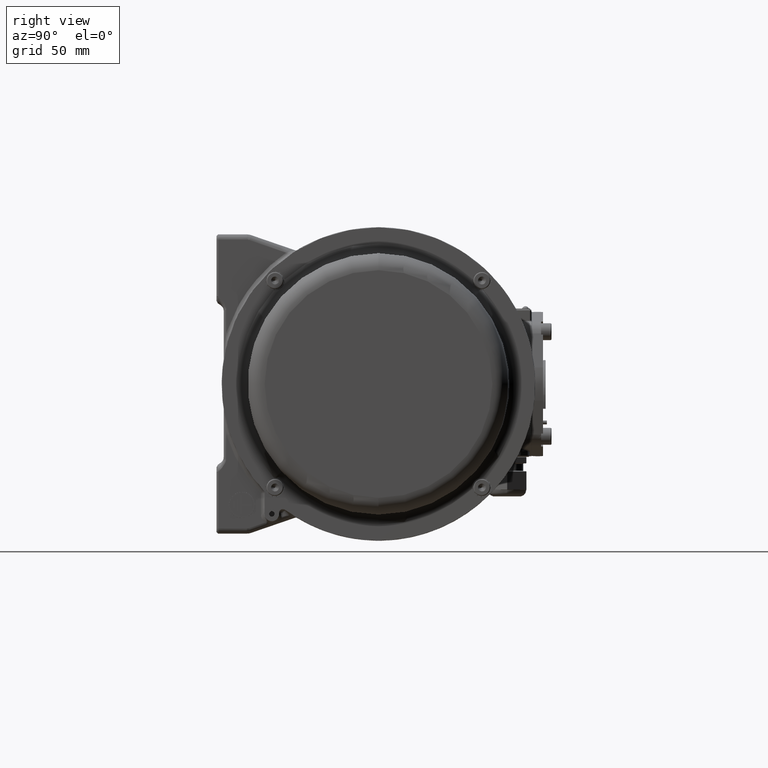
[diagram: clean part render]
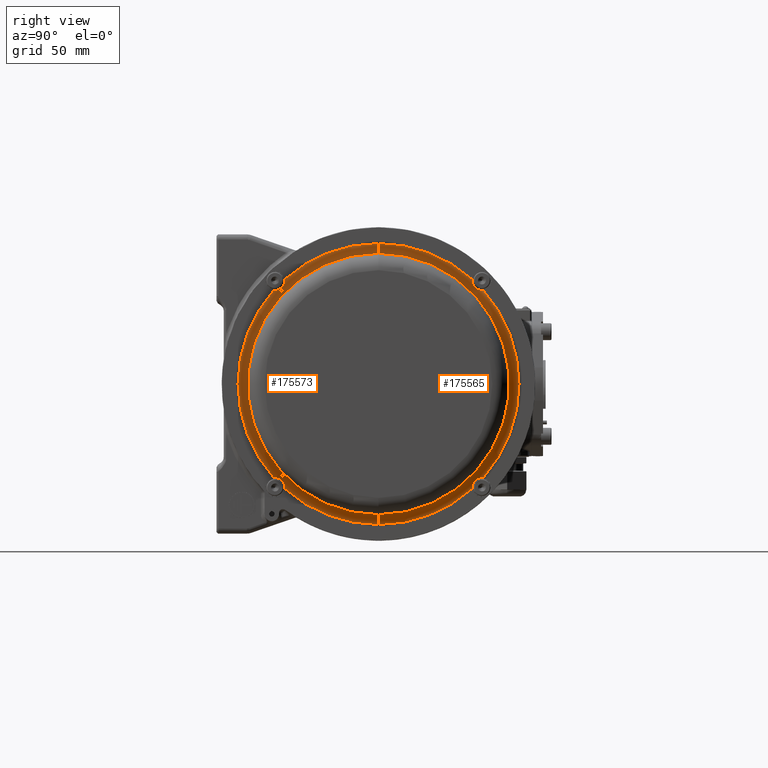
[diagram: same view with one multi-face feature highlighted, each face labeled with its STEP entity id]
A machine part, right view. The highlighted faces form ONE feature: a constant-radius fillet chain: 2 tangent blend faces with common blend radius 7.5 mm. The faces share edges in the B-rep.
Their STEP definitions:
[1] entity #175573 (Torus):
#955 = CARTESIAN_POINT ( 'NONE',  ( 112.4628584247216000, -38.43843088869650200, -73.96171010513388900 ) ) ;
#986 = CARTESIAN_POINT ( 'NONE',  ( 112.4491514678205100, -38.83626597230353600, -73.60553650799678800 ) ) ;
#987 = CARTESIAN_POINT ( 'NONE',  ( 112.4089454792793500, -39.26487234211767000, -73.29743206746221100 ) ) ;
#989 = CARTESIAN_POINT ( 'NONE',  ( 112.3221898346620800, -39.95325216921637000, -72.90459890144843800 ) ) ;
#991 = CARTESIAN_POINT ( 'NONE',  ( 112.2887405209811400, -40.19178677098316400, -72.78474167743374300 ) ) ;
#992 = CARTESIAN_POINT ( 'NONE',  ( 112.2177464829112800, -40.67658757919637900, -72.57257846146703200 ) ) ;
#994 = CARTESIAN_POINT ( 'NONE',  ( 112.1802627548801800, -40.92276230554751500, -72.48007544116976000 ) ) ;
#996 = CARTESIAN_POINT ( 'NONE',  ( 112.1053404424513600, -41.42297575557753200, -72.32136504202705400 ) ) ;
#998 = CARTESIAN_POINT ( 'NONE',  ( 112.0678934336390100, -41.67701349150497900, -72.25515837612167000 ) ) ;
#999 = CARTESIAN_POINT ( 'NONE',  ( 111.9972690195174600, -42.19362761780572400, -72.14928336317109400 ) ) ;
#1001 = CARTESIAN_POINT ( 'NONE',  ( 111.9639170423544400, -42.45790447266436000, -72.10951102074817200 ) ) ;
#1003 = CARTESIAN_POINT ( 'NONE',  ( 111.8789884087745600, -43.24940481655401200, -72.03324522377703000 ) ) ;
#1004 = CARTESIAN_POINT ( 'NONE',  ( 111.8420498956300500, -43.77570803628632500, -72.03832158942505300 ) ) ;
#1006 = CARTESIAN_POINT ( 'NONE',  ( 111.8420498956300000, -44.30134065185225700, -72.09901323092800900 ) ) ;
#2133 = CARTESIAN_POINT ( 'NONE',  ( 112.4628584247216000, -37.85327342159904900, 74.54686757223119300 ) ) ;
#2149 = CARTESIAN_POINT ( 'NONE',  ( 112.4491514678204900, -37.49709982446193400, 74.94470265583824200 ) ) ;
#2150 = CARTESIAN_POINT ( 'NONE',  ( 112.4089454792793700, -37.18899538392737700, 75.37330902565238900 ) ) ;
#2151 = CARTESIAN_POINT ( 'NONE',  ( 112.3221898346621100, -36.79616221791361100, 76.06168885275106100 ) ) ;
#2152 = CARTESIAN_POINT ( 'NONE',  ( 112.2887405209811900, -36.67630499389891700, 76.30022345451786200 ) ) ;
#2153 = CARTESIAN_POINT ( 'NONE',  ( 112.2177464829112900, -36.46414177793214900, 76.78502426273108500 ) ) ;
#2154 = CARTESIAN_POINT ( 'NONE',  ( 112.1802627548801600, -36.37163875763491900, 77.03119898908222800 ) ) ;
#2155 = CARTESIAN_POINT ( 'NONE',  ( 112.1053404424513600, -36.21292835849216400, 77.53141243911224500 ) ) ;
#2156 = CARTESIAN_POINT ( 'NONE',  ( 112.0678934336390300, -36.14672169258677300, 77.78545017503967100 ) ) ;
#2157 = CARTESIAN_POINT ( 'NONE',  ( 111.9972690195174300, -36.04084667963620300, 78.30206430134042300 ) ) ;
#2158 = CARTESIAN_POINT ( 'NONE',  ( 111.9639170423544000, -36.00107433721328900, 78.56634115619904400 ) ) ;
#2159 = CARTESIAN_POINT ( 'NONE',  ( 111.8789884087746000, -35.92480854024214700, 79.35784150008875300 ) ) ;
#2160 = CARTESIAN_POINT ( 'NONE',  ( 111.8420498956300400, -35.92988490589013400, 79.88414471982106600 ) ) ;
#2161 = CARTESIAN_POINT ( 'NONE',  ( 111.8420498956300000, -35.99057654739305400, 80.40977733538699100 ) ) ;
#6104 = AXIS2_PLACEMENT_3D ( 'NONE', #28693, #28677, #28717 ) ;
#7214 = CARTESIAN_POINT ( 'NONE',  ( 119.3420498956300100, 36.10843668353452800, 100.4999999999999600 ) ) ;
#7215 = CARTESIAN_POINT ( 'NONE',  ( 119.3420498956300100, 36.10843668353455600, -100.5000000000000600 ) ) ;
#7222 = CARTESIAN_POINT ( 'NONE',  ( 111.8420498956300100, 36.10843668353452800, 107.9999999999999400 ) ) ;
#7224 = CARTESIAN_POINT ( 'NONE',  ( 111.8420498956300100, 36.10843668353455600, -108.0000000000000600 ) ) ;
#7238 = CARTESIAN_POINT ( 'NONE',  ( 111.8420498956300000, -44.30134065185379900, 72.09901323092610400 ) ) ;
#7281 = CARTESIAN_POINT ( 'NONE',  ( 111.8420498956300000, -35.99057654739134900, -80.40977733538871100 ) ) ;
#7296 = CARTESIAN_POINT ( 'NONE',  ( 111.8420498956300000, -36.30596857921334900, -80.12586293103198900 ) ) ;
#7298 = CARTESIAN_POINT ( 'NONE',  ( 111.8420498956300000, -36.50525953633069800, -79.94530080804709400 ) ) ;
#7299 = CARTESIAN_POINT ( 'NONE',  ( 112.4470371296541900, -37.88066058532840000, 74.57138673864670900 ) ) ;
#7300 = CARTESIAN_POINT ( 'NONE',  ( 112.4634012082901900, -37.86753094403345400, 74.53097832727060300 ) ) ;
#7301 = CARTESIAN_POINT ( 'NONE',  ( 111.8500797414886000, -43.86836375281140500, 72.06169441966270000 ) ) ;
#7302 = CARTESIAN_POINT ( 'NONE',  ( 111.8420498956300000, -43.83686412451225300, 72.61369621986548900 ) ) ;
#7303 = CARTESIAN_POINT ( 'NONE',  ( 111.8420498956300000, -44.01742624750345100, 72.41440526274111300 ) ) ;
#7304 = CARTESIAN_POINT ( 'NONE',  ( 111.8444922958692000, -44.06521667750215000, 72.07552809193920500 ) ) ;
#7305 = CARTESIAN_POINT ( 'NONE',  ( 112.4470371296541900, -38.46295005511190400, -73.98909726886321900 ) ) ;
#7306 = CARTESIAN_POINT ( 'NONE',  ( 112.4634012082901900, -38.42254164373589700, -73.97596762756829500 ) ) ;
#7307 = CARTESIAN_POINT ( 'NONE',  ( 111.8500797414886000, -35.95325773612794500, -79.97680043634630900 ) ) ;
#7308 = CARTESIAN_POINT ( 'NONE',  ( 111.8444922958690000, -35.96709140840440000, -80.17365336103698300 ) ) ;
#21662 = CIRCLE ( 'NONE', #141777, 100.5000000000000000 ) ;
#21676 = CIRCLE ( 'NONE', #141788, 7.499999999999992900 ) ;
#21679 = CIRCLE ( 'NONE', #141791, 7.499999999999992900 ) ;
#21688 = CIRCLE ( 'NONE', #141793, 108.0000000000000000 ) ;
#21729 = CIRCLE ( 'NONE', #141799, 108.0000000000000000 ) ;
#21817 = CIRCLE ( 'NONE', #141808, 108.0000000000000000 ) ;
#21872 = CIRCLE ( 'NONE', #141812, 108.0000000000000000 ) ;
#21879 = CIRCLE ( 'NONE', #141806, 108.0000000000000000 ) ;
#28677 = DIRECTION ( 'NONE',  ( -1.000000000000000000, -2.944983097282874300E-031, 2.832402298722365000E-018 ) ) ;
#28693 = CARTESIAN_POINT ( 'NONE',  ( 119.3420498956300100, 36.10843668353454900, -5.553579313125669400E-014 ) ) ;
#28717 = DIRECTION ( 'NONE',  ( -2.832402298722365000E-018, 6.007700349703228000E-017, -1.000000000000000000 ) ) ;
#33674 = TOROIDAL_SURFACE ( 'NONE', #6104, 108.0000000000000000, 7.500000000000000000 ) ;
#33717 = FACE_OUTER_BOUND ( 'NONE', #187982, .T. ) ;
#38138 = B_SPLINE_CURVE_WITH_KNOTS ( 'NONE', 3,
 ( #66137, #66160, #66164, #66169 ),
 .UNSPECIFIED., .F., .F.,
 ( 4, 4 ),
 ( 0.001659768842651461700, 0.002212183640125269600 ),
 .UNSPECIFIED. ) ;
#38141 = B_SPLINE_CURVE_WITH_KNOTS ( 'NONE', 3,
 ( #66179, #66198, #66203, #66208 ),
 .UNSPECIFIED., .F., .F.,
 ( 4, 4 ),
 ( 0.0000000000000000000, 4.555497409221379600E-005 ),
 .UNSPECIFIED. ) ;
#38144 = B_SPLINE_CURVE_WITH_KNOTS ( 'NONE', 3,
 ( #66234, #66251, #66256, #66261, #66266, #66271, #66275, #66280, #66285, #66289, #66294, #66299, #66303, #66308 ),
 .UNSPECIFIED., .F., .F.,
 ( 4, 2, 2, 2, 2, 2, 4 ),
 ( 0.004178937486488309500, 0.005857649368804048400, 0.007536361251119787400, 0.008375717192277665500, 0.009215073133435544600, 0.01005442907459342200, 0.01089378501575130100 ),
 .UNSPECIFIED. ) ;
#38147 = B_SPLINE_CURVE_WITH_KNOTS ( 'NONE', 3,
 ( #66243, #66322, #66327, #66331 ),
 .UNSPECIFIED., .F., .F.,
 ( 4, 4 ),
 ( 1.322980634718201300E-005, 5.324928225159235600E-005 ),
 .UNSPECIFIED. ) ;
#38150 = B_SPLINE_CURVE_WITH_KNOTS ( 'NONE', 3,
 ( #66336, #66363, #66368, #66373 ),
 .UNSPECIFIED., .F., .F.,
 ( 4, 4 ),
 ( 2.603898261815824100E-006, 0.0003448430350513081600 ),
 .UNSPECIFIED. ) ;
#38153 = B_SPLINE_CURVE_WITH_KNOTS ( 'NONE', 3,
 ( #66355, #66386, #66391, #66396 ),
 .UNSPECIFIED., .F., .F.,
 ( 4, 4 ),
 ( 0.003749134168801736800, 0.003983416587482637200 ),
 .UNSPECIFIED. ) ;
#38156 = B_SPLINE_CURVE_WITH_KNOTS ( 'NONE', 3,
 ( #66377, #66410, #66414, #66419, #66423, #66428, #66433, #66438, #66442, #66447, #66452, #66457, #66462, #66467 ),
 .UNSPECIFIED., .F., .F.,
 ( 4, 2, 2, 2, 2, 2, 4 ),
 ( 0.004178937486488529800, 0.005857649368804297400, 0.007536361251120065800, 0.008375717192277948300, 0.009215073133435832500, 0.01005442907459371700, 0.01089378501575160100 ),
 .UNSPECIFIED. ) ;
#38159 = B_SPLINE_CURVE_WITH_KNOTS ( 'NONE', 3,
 ( #66401, #66479, #66484, #66489 ),
 .UNSPECIFIED., .F., .F.,
 ( 4, 4 ),
 ( 1.322980634723824900E-005, 5.324928225156811000E-005 ),
 .UNSPECIFIED. ) ;
#38162 = B_SPLINE_CURVE_WITH_KNOTS ( 'NONE', 3,
 ( #66382, #66502, #66507, #66512 ),
 .UNSPECIFIED., .F., .F.,
 ( 4, 4 ),
 ( 0.001659768842651452800, 0.002212183640125226200 ),
 .UNSPECIFIED. ) ;
#38165 = B_SPLINE_CURVE_WITH_KNOTS ( 'NONE', 3,
 ( #66494, #66525, #66530, #66535 ),
 .UNSPECIFIED., .F., .F.,
 ( 4, 4 ),
 ( 0.0000000000000000000, 4.555497409218559300E-005 ),
 .UNSPECIFIED. ) ;
#38168 = B_SPLINE_CURVE_WITH_KNOTS ( 'NONE', 3,
 ( #66517, #66562, #66567, #66572 ),
 .UNSPECIFIED., .F., .F.,
 ( 4, 4 ),
 ( 2.603898261772662300E-006, 0.0003448430350591188600 ),
 .UNSPECIFIED. ) ;
#38171 = B_SPLINE_CURVE_WITH_KNOTS ( 'NONE', 3,
 ( #66553, #66604, #66607, #66612 ),
 .UNSPECIFIED., .F., .F.,
 ( 4, 4 ),
 ( 0.003749134168802016100, 0.003983416587482985000 ),
 .UNSPECIFIED. ) ;
#64350 = CARTESIAN_POINT ( 'NONE',  ( 119.3420498956300100, 36.10843668353454900, -5.553579313125669400E-014 ) ) ;
#64357 = DIRECTION ( 'NONE',  ( -1.000000000000000000, -2.944983097282874300E-031, 2.832402298722365000E-018 ) ) ;
#64361 = DIRECTION ( 'NONE',  ( 0.0000000000000000000, 6.904372043688783800E-017, -1.000000000000000000 ) ) ;
#64525 = CARTESIAN_POINT ( 'NONE',  ( 119.3420498956300100, 36.10843668353452800, 107.9999999999999400 ) ) ;
#64584 = CARTESIAN_POINT ( 'NONE',  ( 119.3420498956300100, 36.10843668353455600, -108.0000000000000600 ) ) ;
#64588 = DIRECTION ( 'NONE',  ( 2.939306852595354700E-031, -1.000000000000000000, -2.004039006069234000E-016 ) ) ;
#64592 = DIRECTION ( 'NONE',  ( 0.0000000000000000000, 0.0000000000000000000, -1.000000000000000000 ) ) ;
#64617 = DIRECTION ( 'NONE',  ( -2.942775545004382700E-031, 1.000000000000000000, 7.793922069218809200E-017 ) ) ;
#64621 = DIRECTION ( 'NONE',  ( 0.0000000000000000000, 0.0000000000000000000, 1.000000000000000000 ) ) ;
#64939 = CARTESIAN_POINT ( 'NONE',  ( 111.8420498956300000, 36.10843668353454900, -5.551455011401629100E-014 ) ) ;
#64947 = DIRECTION ( 'NONE',  ( -1.000000000000000000, -2.944983097282874300E-031, 2.832402298722365000E-018 ) ) ;
#64949 = DIRECTION ( 'NONE',  ( 0.0000000000000000000, 6.424901762877063500E-017, -1.000000000000000000 ) ) ;
#65186 = CARTESIAN_POINT ( 'NONE',  ( 111.8420498956300000, 36.10843668353454900, -5.551455011401629100E-014 ) ) ;
#65193 = DIRECTION ( 'NONE',  ( -1.000000000000000000, -2.944983097282874300E-031, 2.832402298722365000E-018 ) ) ;
#65197 = DIRECTION ( 'NONE',  ( 0.0000000000000000000, 6.424901762877063500E-017, -1.000000000000000000 ) ) ;
#65814 = CARTESIAN_POINT ( 'NONE',  ( 111.8420498956300000, 36.10843668353454900, -5.551455011401629100E-014 ) ) ;
#65822 = DIRECTION ( 'NONE',  ( -1.000000000000000000, -2.944983097282874300E-031, 2.832402298722365000E-018 ) ) ;
#65827 = DIRECTION ( 'NONE',  ( 0.0000000000000000000, 6.424901762877063500E-017, -1.000000000000000000 ) ) ;
#66137 = CARTESIAN_POINT ( 'NONE',  ( 111.8420498956300000, -43.83686412451225300, 72.61369621986548900 ) ) ;
#66160 = CARTESIAN_POINT ( 'NONE',  ( 111.8420498956300000, -43.84735945321514100, 72.42977530871372900 ) ) ;
#66164 = CARTESIAN_POINT ( 'NONE',  ( 111.8447346220143600, -43.85785934309510000, 72.24577446716030200 ) ) ;
#66169 = CARTESIAN_POINT ( 'NONE',  ( 111.8500797414886000, -43.86836375281140500, 72.06169441966270000 ) ) ;
#66179 = CARTESIAN_POINT ( 'NONE',  ( 112.4634012082901900, -37.86753094403345400, 74.53097832727060300 ) ) ;
#66193 = CARTESIAN_POINT ( 'NONE',  ( 111.8420498956300000, 36.10843668353454900, -5.551455011401629100E-014 ) ) ;
#66198 = CARTESIAN_POINT ( 'NONE',  ( 112.4579111137152800, -37.87190950028098500, 74.54441422129883700 ) ) ;
#66203 = CARTESIAN_POINT ( 'NONE',  ( 112.4524547227967900, -37.87629123342380000, 74.55789072400520500 ) ) ;
#66208 = CARTESIAN_POINT ( 'NONE',  ( 112.4470371296541900, -37.88066058532840000, 74.57138673864670900 ) ) ;
#66220 = DIRECTION ( 'NONE',  ( -1.000000000000000000, -2.944983097282874300E-031, 2.832402298722365000E-018 ) ) ;
#66225 = DIRECTION ( 'NONE',  ( 0.0000000000000000000, 6.424901762877063500E-017, -1.000000000000000000 ) ) ;
#66234 = CARTESIAN_POINT ( 'NONE',  ( 111.8500797414886000, -43.86836375281140500, 72.06169441966270000 ) ) ;
#66243 = CARTESIAN_POINT ( 'NONE',  ( 112.4470371296541900, -37.88066058532840000, 74.57138673864670900 ) ) ;
#66251 = CARTESIAN_POINT ( 'NONE',  ( 111.8704394949483900, -43.30553933952730700, 72.02957720589648700 ) ) ;
#66256 = CARTESIAN_POINT ( 'NONE',  ( 111.9270577386376700, -42.74629233661710300, 72.06065757798431500 ) ) ;
#66261 = CARTESIAN_POINT ( 'NONE',  ( 112.0698000235059600, -41.63827341863530100, 72.24776100224777100 ) ) ;
#66266 = CARTESIAN_POINT ( 'NONE',  ( 112.1536881547375800, -41.10533456140023400, 72.40078293302941900 ) ) ;
#66271 = CARTESIAN_POINT ( 'NONE',  ( 112.2684596733286600, -40.33281699562605400, 72.71824419126113500 ) ) ;
#66275 = CARTESIAN_POINT ( 'NONE',  ( 112.3051216582993700, -40.07829763628735300, 72.83981048475440900 ) ) ;
#66280 = CARTESIAN_POINT ( 'NONE',  ( 112.3691228128788900, -39.58740774470955900, 73.10920036118906800 ) ) ;
#66285 = CARTESIAN_POINT ( 'NONE',  ( 112.3964789233924200, -39.35108552382557400, 73.25671083983080200 ) ) ;
#66289 = CARTESIAN_POINT ( 'NONE',  ( 112.4388836280967500, -38.89616434036293700, 73.57697929379412500 ) ) ;
#66294 = CARTESIAN_POINT ( 'NONE',  ( 112.4539296565034600, -38.67756623495126400, 73.74973870016424400 ) ) ;
#66299 = CARTESIAN_POINT ( 'NONE',  ( 112.4696612076473900, -38.25835918966456000, 74.12108289356596900 ) ) ;
#66303 = CARTESIAN_POINT ( 'NONE',  ( 112.4702689327140800, -38.05642502362348300, 74.32120303209687500 ) ) ;
#66308 = CARTESIAN_POINT ( 'NONE',  ( 112.4634012082901900, -37.86753094403345400, 74.53097832727060300 ) ) ;
#66317 = CARTESIAN_POINT ( 'NONE',  ( 111.8420498956300000, 36.10843668353454900, -5.551455011401629100E-014 ) ) ;
#66322 = CARTESIAN_POINT ( 'NONE',  ( 112.4522782753623600, -37.87152110910379600, 74.56320435288682800 ) ) ;
#66327 = CARTESIAN_POINT ( 'NONE',  ( 112.4575520775248200, -37.86239198984230100, 74.55503123950381900 ) ) ;
#66331 = CARTESIAN_POINT ( 'NONE',  ( 112.4628584247216000, -37.85327342159904900, 74.54686757223119300 ) ) ;
#66336 = CARTESIAN_POINT ( 'NONE',  ( 111.8444922958692000, -44.06521667750215000, 72.07552809193920500 ) ) ;
#66345 = DIRECTION ( 'NONE',  ( -1.000000000000000000, -2.944983097282874300E-031, 2.832402298722365000E-018 ) ) ;
#66350 = DIRECTION ( 'NONE',  ( 0.0000000000000000000, 6.424901762877063500E-017, -1.000000000000000000 ) ) ;
#66355 = CARTESIAN_POINT ( 'NONE',  ( 111.8420498956300000, -44.30134065185379900, 72.09901323092610400 ) ) ;
#66363 = CARTESIAN_POINT ( 'NONE',  ( 111.8428509715587000, -44.05004229792853500, 72.18858217228316200 ) ) ;
#66368 = CARTESIAN_POINT ( 'NONE',  ( 111.8420498956299700, -44.03415976458754200, 72.30155948200925300 ) ) ;
#66373 = CARTESIAN_POINT ( 'NONE',  ( 111.8420498956300000, -44.01742624750345100, 72.41440526274111300 ) ) ;
#66377 = CARTESIAN_POINT ( 'NONE',  ( 111.8500797414886000, -35.95325773612794500, -79.97680043634630900 ) ) ;
#66382 = CARTESIAN_POINT ( 'NONE',  ( 111.8420498956300000, -36.50525953633069800, -79.94530080804709400 ) ) ;
#66386 = CARTESIAN_POINT ( 'NONE',  ( 111.8420498956300000, -44.22285701040399900, 72.08995119617097200 ) ) ;
#66391 = CARTESIAN_POINT ( 'NONE',  ( 111.8428860207659700, -44.14392210730435600, 72.08210065609438300 ) ) ;
#66396 = CARTESIAN_POINT ( 'NONE',  ( 111.8444922958692000, -44.06521667750215000, 72.07552809193920500 ) ) ;
#66401 = CARTESIAN_POINT ( 'NONE',  ( 112.4470371296541900, -38.46295005511190400, -73.98909726886321900 ) ) ;
#66410 = CARTESIAN_POINT ( 'NONE',  ( 111.8704394949483600, -35.92114052236168200, -79.41397602306229000 ) ) ;
#66414 = CARTESIAN_POINT ( 'NONE',  ( 111.9270577386376700, -35.95222089444951800, -78.85472902015206400 ) ) ;
#66419 = CARTESIAN_POINT ( 'NONE',  ( 112.0698000235059800, -36.13932431871296600, -77.74671010217024000 ) ) ;
#66423 = CARTESIAN_POINT ( 'NONE',  ( 112.1536881547375900, -36.29234624949460700, -77.21377124493514500 ) ) ;
#66428 = CARTESIAN_POINT ( 'NONE',  ( 112.2684596733286200, -36.60980750772631600, -76.44125367916098000 ) ) ;
#66433 = CARTESIAN_POINT ( 'NONE',  ( 112.3051216582993700, -36.73137380121963200, -76.18673431982223600 ) ) ;
#66438 = CARTESIAN_POINT ( 'NONE',  ( 112.3691228128788700, -37.00076367765424800, -75.69584442824444200 ) ) ;
#66442 = CARTESIAN_POINT ( 'NONE',  ( 112.3964789233924200, -37.14827415629599700, -75.45952220736045000 ) ) ;
#66447 = CARTESIAN_POINT ( 'NONE',  ( 112.4388836280967200, -37.46854261025932700, -75.00460102389779100 ) ) ;
#66452 = CARTESIAN_POINT ( 'NONE',  ( 112.4539296565034600, -37.64130201662945300, -74.78600291848609100 ) ) ;
#66457 = CARTESIAN_POINT ( 'NONE',  ( 112.4696612076473900, -38.01264621003117800, -74.36679587319942200 ) ) ;
#66462 = CARTESIAN_POINT ( 'NONE',  ( 112.4702689327140900, -38.21276634856210600, -74.16486170715833700 ) ) ;
#66467 = CARTESIAN_POINT ( 'NONE',  ( 112.4634012082901900, -38.42254164373589700, -73.97596762756829500 ) ) ;
#66479 = CARTESIAN_POINT ( 'NONE',  ( 112.4522782753623600, -38.45476766935209400, -73.97995779263858700 ) ) ;
#66484 = CARTESIAN_POINT ( 'NONE',  ( 112.4575520775248200, -38.44659455596909900, -73.97082867337712700 ) ) ;
#66489 = CARTESIAN_POINT ( 'NONE',  ( 112.4628584247216000, -38.43843088869650200, -73.96171010513388900 ) ) ;
#66494 = CARTESIAN_POINT ( 'NONE',  ( 112.4634012082901900, -38.42254164373589700, -73.97596762756829500 ) ) ;
#66502 = CARTESIAN_POINT ( 'NONE',  ( 111.8420498956300000, -36.32133862517894600, -79.95579613675005200 ) ) ;
#66507 = CARTESIAN_POINT ( 'NONE',  ( 111.8447346220143600, -36.13733778362554700, -79.96629602663000500 ) ) ;
#66512 = CARTESIAN_POINT ( 'NONE',  ( 111.8500797414886000, -35.95325773612794500, -79.97680043634630900 ) ) ;
#66517 = CARTESIAN_POINT ( 'NONE',  ( 111.8444922958690000, -35.96709140840440000, -80.17365336103698300 ) ) ;
#66525 = CARTESIAN_POINT ( 'NONE',  ( 112.4579111137152800, -38.43597753776408900, -73.98034618381589700 ) ) ;
#66530 = CARTESIAN_POINT ( 'NONE',  ( 112.4524547227965700, -38.44945404047041400, -73.98472791695854800 ) ) ;
#66535 = CARTESIAN_POINT ( 'NONE',  ( 112.4470371296541900, -38.46295005511190400, -73.98909726886321900 ) ) ;
#66553 = CARTESIAN_POINT ( 'NONE',  ( 111.8420498956300000, -35.99057654739134900, -80.40977733538871100 ) ) ;
#66562 = CARTESIAN_POINT ( 'NONE',  ( 111.8428509715586300, -36.08014548875214400, -80.15847898146286400 ) ) ;
#66567 = CARTESIAN_POINT ( 'NONE',  ( 111.8420498956299100, -36.19312279848200800, -80.14259644812139500 ) ) ;
#66572 = CARTESIAN_POINT ( 'NONE',  ( 111.8420498956300000, -36.30596857921334900, -80.12586293103198900 ) ) ;
#66604 = CARTESIAN_POINT ( 'NONE',  ( 111.8420498956300000, -35.98151451263616700, -80.33129369393888900 ) ) ;
#66607 = CARTESIAN_POINT ( 'NONE',  ( 111.8428860207659700, -35.97366397255957800, -80.25235879083922400 ) ) ;
#66612 = CARTESIAN_POINT ( 'NONE',  ( 111.8444922958690000, -35.96709140840440000, -80.17365336103698300 ) ) ;
#116729 = VERTEX_POINT ( 'NONE', #138643 ) ;
#116731 = VERTEX_POINT ( 'NONE', #138645 ) ;
#117194 = VERTEX_POINT ( 'NONE', #139013 ) ;
#117196 = VERTEX_POINT ( 'NONE', #139015 ) ;
#138643 = CARTESIAN_POINT ( 'NONE',  ( 112.4628584247216000, -38.43843088869650200, -73.96171010513388900 ) ) ;
#138645 = CARTESIAN_POINT ( 'NONE',  ( 111.8420498956300000, -44.30134065185225700, -72.09901323092800900 ) ) ;
#139013 = CARTESIAN_POINT ( 'NONE',  ( 112.4628584247216000, -37.85327342159904900, 74.54686757223119300 ) ) ;
#139015 = CARTESIAN_POINT ( 'NONE',  ( 111.8420498956300000, -35.99057654739305400, 80.40977733538699100 ) ) ;
#141777 = AXIS2_PLACEMENT_3D ( 'NONE', #64350, #64357, #64361 ) ;
#141788 = AXIS2_PLACEMENT_3D ( 'NONE', #64525, #64588, #64592 ) ;
#141791 = AXIS2_PLACEMENT_3D ( 'NONE', #64584, #64617, #64621 ) ;
#141793 = AXIS2_PLACEMENT_3D ( 'NONE', #64939, #64947, #64949 ) ;
#141799 = AXIS2_PLACEMENT_3D ( 'NONE', #65186, #65193, #65197 ) ;
#141806 = AXIS2_PLACEMENT_3D ( 'NONE', #66317, #66345, #66350 ) ;
#141808 = AXIS2_PLACEMENT_3D ( 'NONE', #65814, #65822, #65827 ) ;
#141812 = AXIS2_PLACEMENT_3D ( 'NONE', #66193, #66220, #66225 ) ;
#170089 = EDGE_CURVE ( 'NONE', #116729, #116731, #199096, .T. ) ;
#170549 = EDGE_CURVE ( 'NONE', #117194, #117196, #199203, .T. ) ;
#172706 = VERTEX_POINT ( 'NONE', #7214 ) ;
#172707 = VERTEX_POINT ( 'NONE', #7215 ) ;
#172714 = VERTEX_POINT ( 'NONE', #7222 ) ;
#172716 = VERTEX_POINT ( 'NONE', #7224 ) ;
#172730 = VERTEX_POINT ( 'NONE', #7238 ) ;
#172773 = VERTEX_POINT ( 'NONE', #7281 ) ;
#172788 = VERTEX_POINT ( 'NONE', #7296 ) ;
#172790 = VERTEX_POINT ( 'NONE', #7298 ) ;
#172791 = VERTEX_POINT ( 'NONE', #7299 ) ;
#172792 = VERTEX_POINT ( 'NONE', #7300 ) ;
#172793 = VERTEX_POINT ( 'NONE', #7301 ) ;
#172794 = VERTEX_POINT ( 'NONE', #7302 ) ;
#172795 = VERTEX_POINT ( 'NONE', #7303 ) ;
#172796 = VERTEX_POINT ( 'NONE', #7304 ) ;
#172797 = VERTEX_POINT ( 'NONE', #7305 ) ;
#172798 = VERTEX_POINT ( 'NONE', #7306 ) ;
#172799 = VERTEX_POINT ( 'NONE', #7307 ) ;
#172800 = VERTEX_POINT ( 'NONE', #7308 ) ;
#175573 = ADVANCED_FACE ( 'NONE', ( #33717 ), #33674, .F. ) ;
#180487 = EDGE_CURVE ( 'NONE', #172707, #172706, #21662, .T. ) ;
#180517 = EDGE_CURVE ( 'NONE', #172714, #172706, #21676, .T. ) ;
#180522 = EDGE_CURVE ( 'NONE', #172716, #172707, #21679, .T. ) ;
#180560 = EDGE_CURVE ( 'NONE', #116731, #172730, #21688, .T. ) ;
#180607 = EDGE_CURVE ( 'NONE', #117196, #172714, #21729, .T. ) ;
#180706 = EDGE_CURVE ( 'NONE', #172716, #172773, #21817, .T. ) ;
#180761 = EDGE_CURVE ( 'NONE', #172794, #172793, #38138, .T. ) ;
#180766 = EDGE_CURVE ( 'NONE', #172792, #172791, #38141, .T. ) ;
#180768 = EDGE_CURVE ( 'NONE', #172788, #172790, #21872, .T. ) ;
#180773 = EDGE_CURVE ( 'NONE', #172793, #172792, #38144, .T. ) ;
#180775 = EDGE_CURVE ( 'NONE', #172791, #117194, #38147, .T. ) ;
#180778 = EDGE_CURVE ( 'NONE', #172795, #172794, #21879, .T. ) ;
#180780 = EDGE_CURVE ( 'NONE', #172796, #172795, #38150, .T. ) ;
#180783 = EDGE_CURVE ( 'NONE', #172730, #172796, #38153, .T. ) ;
#180785 = EDGE_CURVE ( 'NONE', #172799, #172798, #38156, .T. ) ;
#180787 = EDGE_CURVE ( 'NONE', #172797, #116729, #38159, .T. ) ;
#180790 = EDGE_CURVE ( 'NONE', #172790, #172799, #38162, .T. ) ;
#180792 = EDGE_CURVE ( 'NONE', #172798, #172797, #38165, .T. ) ;
#180797 = EDGE_CURVE ( 'NONE', #172800, #172788, #38168, .T. ) ;
#180802 = EDGE_CURVE ( 'NONE', #172773, #172800, #38171, .T. ) ;
#187982 = EDGE_LOOP ( 'NONE', ( #192864, #192865, #192866, #192867, #192868, #192869, #192870, #192871, #192872, #192873, #192874, #192875, #192876, #192877, #192878, #192879, #192880, #192881, #192882, #192883, #192884, #192885 ) ) ;
#192864 = ORIENTED_EDGE ( 'NONE', *, *, #180517, .F. ) ;
#192865 = ORIENTED_EDGE ( 'NONE', *, *, #180607, .F. ) ;
#192866 = ORIENTED_EDGE ( 'NONE', *, *, #170549, .F. ) ;
#192867 = ORIENTED_EDGE ( 'NONE', *, *, #180775, .F. ) ;
#192868 = ORIENTED_EDGE ( 'NONE', *, *, #180766, .F. ) ;
#192869 = ORIENTED_EDGE ( 'NONE', *, *, #180773, .F. ) ;
#192870 = ORIENTED_EDGE ( 'NONE', *, *, #180761, .F. ) ;
#192871 = ORIENTED_EDGE ( 'NONE', *, *, #180778, .F. ) ;
#192872 = ORIENTED_EDGE ( 'NONE', *, *, #180780, .F. ) ;
#192873 = ORIENTED_EDGE ( 'NONE', *, *, #180783, .F. ) ;
#192874 = ORIENTED_EDGE ( 'NONE', *, *, #180560, .F. ) ;
#192875 = ORIENTED_EDGE ( 'NONE', *, *, #170089, .F. ) ;
#192876 = ORIENTED_EDGE ( 'NONE', *, *, #180787, .F. ) ;
#192877 = ORIENTED_EDGE ( 'NONE', *, *, #180792, .F. ) ;
#192878 = ORIENTED_EDGE ( 'NONE', *, *, #180785, .F. ) ;
#192879 = ORIENTED_EDGE ( 'NONE', *, *, #180790, .F. ) ;
#192880 = ORIENTED_EDGE ( 'NONE', *, *, #180768, .F. ) ;
#192881 = ORIENTED_EDGE ( 'NONE', *, *, #180797, .F. ) ;
#192882 = ORIENTED_EDGE ( 'NONE', *, *, #180802, .F. ) ;
#192883 = ORIENTED_EDGE ( 'NONE', *, *, #180706, .F. ) ;
#192884 = ORIENTED_EDGE ( 'NONE', *, *, #180522, .T. ) ;
#192885 = ORIENTED_EDGE ( 'NONE', *, *, #180487, .T. ) ;
#199096 = B_SPLINE_CURVE_WITH_KNOTS ( 'NONE', 3,
 ( #955, #986, #987, #989, #991, #992, #994, #996, #998, #999, #1001, #1003, #1004, #1006 ),
 .UNSPECIFIED., .F., .F.,
 ( 4, 2, 2, 2, 2, 2, 4 ),
 ( 0.01091493835006233100, 0.01250334758896648500, 0.01329755220841857100, 0.01409175682787065800, 0.01488596144732274400, 0.01568016606677483100, 0.01726857530567897600 ),
 .UNSPECIFIED. ) ;
#199203 = B_SPLINE_CURVE_WITH_KNOTS ( 'NONE', 3,
 ( #2133, #2149, #2150, #2151, #2152, #2153, #2154, #2155, #2156, #2157, #2158, #2159, #2160, #2161 ),
 .UNSPECIFIED., .F., .F.,
 ( 4, 2, 2, 2, 2, 2, 4 ),
 ( 0.01091493835006198200, 0.01250334758896619200, 0.01329755220841827800, 0.01409175682787036600, 0.01488596144732245300, 0.01568016606677454000, 0.01726857530567875800 ),
 .UNSPECIFIED. ) ;
[2] entity #175565 (Torus):
#1712 = CARTESIAN_POINT ( 'NONE',  ( 112.4628584247216000, 110.0701467886685900, -74.54686757223080900 ) ) ;
#1743 = CARTESIAN_POINT ( 'NONE',  ( 112.4491514678205300, 109.7139731915314500, -74.94470265583783000 ) ) ;
#1744 = CARTESIAN_POINT ( 'NONE',  ( 112.4089454792793700, 109.4058687509968900, -75.37330902565196300 ) ) ;
#1746 = CARTESIAN_POINT ( 'NONE',  ( 112.3221898346621100, 109.0130355849831100, -76.06168885275067700 ) ) ;
#1748 = CARTESIAN_POINT ( 'NONE',  ( 112.2887405209812200, 108.8931783609684900, -76.30022345451746400 ) ) ;
#1750 = CARTESIAN_POINT ( 'NONE',  ( 112.2177464829113200, 108.6810151450017500, -76.78502426273068700 ) ) ;
#1751 = CARTESIAN_POINT ( 'NONE',  ( 112.1802627548801900, 108.5885121247044700, -77.03119898908180100 ) ) ;
#1753 = CARTESIAN_POINT ( 'NONE',  ( 112.1053404424514100, 108.4298017255617300, -77.53141243911184700 ) ) ;
#1755 = CARTESIAN_POINT ( 'NONE',  ( 112.0678934336390300, 108.3635950596563500, -77.78545017503930100 ) ) ;
#1756 = CARTESIAN_POINT ( 'NONE',  ( 111.9972690195174500, 108.2577200467057800, -78.30206430134003900 ) ) ;
#1758 = CARTESIAN_POINT ( 'NONE',  ( 111.9639170423544000, 108.2179477042828200, -78.56634115619864600 ) ) ;
#1759 = CARTESIAN_POINT ( 'NONE',  ( 111.8789884087745600, 108.1416819073116600, -79.35784150008828400 ) ) ;
#1760 = CARTESIAN_POINT ( 'NONE',  ( 111.8420498956300000, 108.1467582729596700, -79.88414471982065400 ) ) ;
#1761 = CARTESIAN_POINT ( 'NONE',  ( 111.8420498956300000, 108.2074499144626000, -80.40977733538659300 ) ) ;
#6095 = AXIS2_PLACEMENT_3D ( 'NONE', #28636, #28632, #28654 ) ;
#6932 = CARTESIAN_POINT ( 'NONE',  ( 112.4628584247216000, 110.6553042557660000, 73.96171010513329200 ) ) ;
#6948 = CARTESIAN_POINT ( 'NONE',  ( 112.4491514678205300, 111.0531393393730900, 73.60553650799617700 ) ) ;
#6949 = CARTESIAN_POINT ( 'NONE',  ( 112.4089454792794100, 111.4817457091872800, 73.29743206746161400 ) ) ;
#6950 = CARTESIAN_POINT ( 'NONE',  ( 112.3221898346621400, 112.1701255362859500, 72.90459890144785500 ) ) ;
#6951 = CARTESIAN_POINT ( 'NONE',  ( 112.2887405209811500, 112.4086601380527400, 72.78474167743310400 ) ) ;
#6952 = CARTESIAN_POINT ( 'NONE',  ( 112.2177464829112800, 112.8934609462659800, 72.57257846146635000 ) ) ;
#6953 = CARTESIAN_POINT ( 'NONE',  ( 112.1802627548801300, 113.1396356726170800, 72.48007544116909200 ) ) ;
#6954 = CARTESIAN_POINT ( 'NONE',  ( 112.1053404424513500, 113.6398491226471600, 72.32136504202634300 ) ) ;
#6955 = CARTESIAN_POINT ( 'NONE',  ( 112.0678934336390400, 113.8938868585746300, 72.25515837612098800 ) ) ;
#6956 = CARTESIAN_POINT ( 'NONE',  ( 111.9972690195174500, 114.4105009848753800, 72.14928336317041200 ) ) ;
#6957 = CARTESIAN_POINT ( 'NONE',  ( 111.9639170423544500, 114.6747778397340500, 72.10951102074749000 ) ) ;
#6958 = CARTESIAN_POINT ( 'NONE',  ( 111.8789884087745900, 115.4662781836237100, 72.03324522377634800 ) ) ;
#6959 = CARTESIAN_POINT ( 'NONE',  ( 111.8420498956300300, 115.9925814033560800, 72.03832158942432800 ) ) ;
#6960 = CARTESIAN_POINT ( 'NONE',  ( 111.8420498956300000, 116.5182140189220000, 72.09901323092731200 ) ) ;
#7214 = CARTESIAN_POINT ( 'NONE',  ( 119.3420498956300100, 36.10843668353452800, 100.4999999999999600 ) ) ;
#7215 = CARTESIAN_POINT ( 'NONE',  ( 119.3420498956300100, 36.10843668353455600, -100.5000000000000600 ) ) ;
#7222 = CARTESIAN_POINT ( 'NONE',  ( 111.8420498956300100, 36.10843668353452800, 107.9999999999999400 ) ) ;
#7223 = CARTESIAN_POINT ( 'NONE',  ( 111.8420498956300000, 108.2074499144610100, 80.40977733538810000 ) ) ;
#7224 = CARTESIAN_POINT ( 'NONE',  ( 111.8420498956300100, 36.10843668353455600, -108.0000000000000600 ) ) ;
#7225 = CARTESIAN_POINT ( 'NONE',  ( 112.4470371296541900, 110.0975339523980100, -74.57138673864629700 ) ) ;
#7226 = CARTESIAN_POINT ( 'NONE',  ( 112.4634012082901900, 110.0844043111029900, -74.53097832727019100 ) ) ;
#7227 = CARTESIAN_POINT ( 'NONE',  ( 111.8500797414886000, 116.0852371198810000, -72.06169441966230200 ) ) ;
#7228 = CARTESIAN_POINT ( 'NONE',  ( 111.8420498956300000, 116.0537374915820000, -72.61369621986509100 ) ) ;
#7229 = CARTESIAN_POINT ( 'NONE',  ( 111.8420498956300000, 116.2342996145714000, -72.41440526274239200 ) ) ;
#7230 = CARTESIAN_POINT ( 'NONE',  ( 111.8444922958690000, 116.2820900445718000, -72.07552809193870800 ) ) ;
#7231 = CARTESIAN_POINT ( 'NONE',  ( 111.8420498956300000, 116.5182140189234000, -72.09901323092570600 ) ) ;
#7232 = CARTESIAN_POINT ( 'NONE',  ( 112.4470371296541900, 110.6798234221814000, 73.98909726886260800 ) ) ;
#7233 = CARTESIAN_POINT ( 'NONE',  ( 112.4634012082974000, 110.6394150107986000, 73.97596762757099500 ) ) ;
#7234 = CARTESIAN_POINT ( 'NONE',  ( 111.8500797414886000, 108.1701311031975900, 79.97680043634559900 ) ) ;
#7235 = CARTESIAN_POINT ( 'NONE',  ( 111.8420498956300000, 108.7221329034004100, 79.94530080804648300 ) ) ;
#7236 = CARTESIAN_POINT ( 'NONE',  ( 111.8420498956300000, 108.5228419462725900, 80.12586293104070000 ) ) ;
#7237 = CARTESIAN_POINT ( 'NONE',  ( 111.8444922958690000, 108.1839647754740000, 80.17365336103638600 ) ) ;
#21674 = CIRCLE ( 'NONE', #141784, 100.5000000000000000 ) ;
#21675 = CIRCLE ( 'NONE', #141787, 108.0000000000000000 ) ;
#21676 = CIRCLE ( 'NONE', #141788, 7.499999999999992900 ) ;
#21677 = CIRCLE ( 'NONE', #141789, 108.0000000000000000 ) ;
#21679 = CIRCLE ( 'NONE', #141791, 7.499999999999992900 ) ;
#21680 = CIRCLE ( 'NONE', #141792, 108.0000000000000000 ) ;
#21682 = CIRCLE ( 'NONE', #141790, 108.0000000000000000 ) ;
#21684 = CIRCLE ( 'NONE', #141794, 108.0000000000000000 ) ;
#28632 = DIRECTION ( 'NONE',  ( -1.000000000000000000, -2.944983097282874300E-031, 2.832402298722365000E-018 ) ) ;
#28636 = CARTESIAN_POINT ( 'NONE',  ( 119.3420498956300100, 36.10843668353454900, -5.553579313125669400E-014 ) ) ;
#28654 = DIRECTION ( 'NONE',  ( -2.832402298722365000E-018, 6.007700349703228000E-017, -1.000000000000000000 ) ) ;
#33524 = FACE_OUTER_BOUND ( 'NONE', #187984, .T. ) ;
#33617 = TOROIDAL_SURFACE ( 'NONE', #6095, 108.0000000000000000, 7.500000000000000000 ) ;
#38102 = B_SPLINE_CURVE_WITH_KNOTS ( 'NONE', 3,
 ( #64513, #64532, #64535, #64539, #64543, #64547, #64551, #64555, #64558, #64562, #64566, #64570, #64574, #64578 ),
 .UNSPECIFIED., .F., .F.,
 ( 4, 2, 2, 2, 2, 2, 4 ),
 ( 0.004178937486488224500, 0.005857649368803973800, 0.007536361251119722300, 0.008375717192277597900, 0.009215073133435471700, 0.01005442907459334600, 0.01089378501575122100 ),
 .UNSPECIFIED. ) ;
#38105 = B_SPLINE_CURVE_WITH_KNOTS ( 'NONE', 3,
 ( #64610, #64631, #64635, #64639 ),
 .UNSPECIFIED., .F., .F.,
 ( 4, 4 ),
 ( 1.322980634716803000E-005, 5.324928225161610700E-005 ),
 .UNSPECIFIED. ) ;
#38108 = B_SPLINE_CURVE_WITH_KNOTS ( 'NONE', 3,
 ( #64596, #64648, #64652, #64656 ),
 .UNSPECIFIED., .F., .F.,
 ( 4, 4 ),
 ( 0.001659768842651472500, 0.002212183640125267000 ),
 .UNSPECIFIED. ) ;
#38111 = B_SPLINE_CURVE_WITH_KNOTS ( 'NONE', 3,
 ( #64624, #64666, #64670, #64674 ),
 .UNSPECIFIED., .F., .F.,
 ( 4, 4 ),
 ( 0.0000000000000000000, 4.555497409222440100E-005 ),
 .UNSPECIFIED. ) ;
#38114 = B_SPLINE_CURVE_WITH_KNOTS ( 'NONE', 3,
 ( #64678, #64699, #64703, #64707 ),
 .UNSPECIFIED., .F., .F.,
 ( 4, 4 ),
 ( 2.603898261717696200E-006, 0.0003448430350532197700 ),
 .UNSPECIFIED. ) ;
#38117 = B_SPLINE_CURVE_WITH_KNOTS ( 'NONE', 3,
 ( #64692, #64718, #64722, #64726 ),
 .UNSPECIFIED., .F., .F.,
 ( 4, 4 ),
 ( 0.003749134168801662200, 0.003983416587482503700 ),
 .UNSPECIFIED. ) ;
#38120 = B_SPLINE_CURVE_WITH_KNOTS ( 'NONE', 3,
 ( #64714, #64751, #64754, #64758, #64762, #64766, #64769, #64773, #64776, #64780, #64784, #64788, #64792, #64796 ),
 .UNSPECIFIED., .F., .F.,
 ( 4, 2, 2, 2, 2, 2, 4 ),
 ( 0.004178937486488304300, 0.005857649368799778400, 0.007536361251111251700, 0.008375717192266988300, 0.009215073133422725000, 0.01005442907457846300, 0.01089378501573420000 ),
 .UNSPECIFIED. ) ;
#38123 = B_SPLINE_CURVE_WITH_KNOTS ( 'NONE', 3,
 ( #64710, #64806, #64810, #64814 ),
 .UNSPECIFIED., .F., .F.,
 ( 4, 4 ),
 ( 1.322980634718097100E-005, 5.324928225148391500E-005 ),
 .UNSPECIFIED. ) ;
#38126 = B_SPLINE_CURVE_WITH_KNOTS ( 'NONE', 3,
 ( #64744, #64823, #64827, #64831 ),
 .UNSPECIFIED., .F., .F.,
 ( 4, 4 ),
 ( 0.001659768842651432000, 0.002212183640125267800 ),
 .UNSPECIFIED. ) ;
#38129 = B_SPLINE_CURVE_WITH_KNOTS ( 'NONE', 3,
 ( #64802, #64841, #64845, #64849 ),
 .UNSPECIFIED., .F., .F.,
 ( 4, 4 ),
 ( 0.0000000000000000000, 4.555497409218210300E-005 ),
 .UNSPECIFIED. ) ;
#38132 = B_SPLINE_CURVE_WITH_KNOTS ( 'NONE', 3,
 ( #64853, #64874, #64878, #64882 ),
 .UNSPECIFIED., .F., .F.,
 ( 4, 4 ),
 ( 2.603898261815824100E-006, 0.0003448430350476153100 ),
 .UNSPECIFIED. ) ;
#38135 = B_SPLINE_CURVE_WITH_KNOTS ( 'NONE', 3,
 ( #64867, #64891, #64895, #64899 ),
 .UNSPECIFIED., .F., .F.,
 ( 4, 4 ),
 ( 0.003749134168801640500, 0.003983416587482601700 ),
 .UNSPECIFIED. ) ;
#64469 = CARTESIAN_POINT ( 'NONE',  ( 111.8420498956300000, 36.10843668353454900, -5.551455011401629100E-014 ) ) ;
#64495 = CARTESIAN_POINT ( 'NONE',  ( 119.3420498956300100, 36.10843668353454900, -5.553579313125669400E-014 ) ) ;
#64502 = DIRECTION ( 'NONE',  ( -1.000000000000000000, -2.944983097282874300E-031, 2.832402298722365000E-018 ) ) ;
#64506 = DIRECTION ( 'NONE',  ( 0.0000000000000000000, 6.904372043688783800E-017, -1.000000000000000000 ) ) ;
#64510 = CARTESIAN_POINT ( 'NONE',  ( 111.8420498956300000, 36.10843668353454900, -5.551455011401629100E-014 ) ) ;
#64513 = CARTESIAN_POINT ( 'NONE',  ( 111.8500797414886000, 116.0852371198810000, -72.06169441966230200 ) ) ;
#64517 = DIRECTION ( 'NONE',  ( -1.000000000000000000, -2.944983097282874300E-031, 2.832402298722365000E-018 ) ) ;
#64521 = DIRECTION ( 'NONE',  ( 0.0000000000000000000, 6.424901762877063500E-017, -1.000000000000000000 ) ) ;
#64525 = CARTESIAN_POINT ( 'NONE',  ( 119.3420498956300100, 36.10843668353452800, 107.9999999999999400 ) ) ;
#64532 = CARTESIAN_POINT ( 'NONE',  ( 111.8704394949483900, 115.5224127065969400, -72.02957720589597600 ) ) ;
#64535 = CARTESIAN_POINT ( 'NONE',  ( 111.9270577386377000, 114.9631657036867100, -72.06065757798383200 ) ) ;
#64539 = CARTESIAN_POINT ( 'NONE',  ( 112.0698000235060200, 113.8551467857048600, -72.24776100224725900 ) ) ;
#64543 = CARTESIAN_POINT ( 'NONE',  ( 112.1536881547375900, 113.3222079284698100, -72.40078293302893500 ) ) ;
#64547 = CARTESIAN_POINT ( 'NONE',  ( 112.2684596733286600, 112.5496903626956400, -72.71824419126060900 ) ) ;
#64551 = CARTESIAN_POINT ( 'NONE',  ( 112.3051216582994000, 112.2951710033569100, -72.83981048475394000 ) ) ;
#64555 = CARTESIAN_POINT ( 'NONE',  ( 112.3691228128789000, 111.8042811117791300, -73.10920036118855600 ) ) ;
#64558 = CARTESIAN_POINT ( 'NONE',  ( 112.3964789233924400, 111.5679588908951700, -73.25671083983030500 ) ) ;
#64562 = CARTESIAN_POINT ( 'NONE',  ( 112.4388836280967500, 111.1130377074324800, -73.57697929379359900 ) ) ;
#64566 = CARTESIAN_POINT ( 'NONE',  ( 112.4539296565035200, 110.8944396020208400, -73.74973870016373200 ) ) ;
#64570 = CARTESIAN_POINT ( 'NONE',  ( 112.4696612076474100, 110.4752325567341300, -74.12108289356545800 ) ) ;
#64574 = CARTESIAN_POINT ( 'NONE',  ( 112.4702689327141100, 110.2732983906930400, -74.32120303209639200 ) ) ;
#64578 = CARTESIAN_POINT ( 'NONE',  ( 112.4634012082901900, 110.0844043111029900, -74.53097832727019100 ) ) ;
#64584 = CARTESIAN_POINT ( 'NONE',  ( 119.3420498956300100, 36.10843668353455600, -108.0000000000000600 ) ) ;
#64588 = DIRECTION ( 'NONE',  ( 2.939306852595354700E-031, -1.000000000000000000, -2.004039006069234000E-016 ) ) ;
#64592 = DIRECTION ( 'NONE',  ( 0.0000000000000000000, 0.0000000000000000000, -1.000000000000000000 ) ) ;
#64596 = CARTESIAN_POINT ( 'NONE',  ( 111.8420498956300000, 116.0537374915820000, -72.61369621986509100 ) ) ;
#64602 = DIRECTION ( 'NONE',  ( -1.000000000000000000, -2.944983097282874300E-031, 2.832402298722365000E-018 ) ) ;
#64606 = DIRECTION ( 'NONE',  ( 0.0000000000000000000, 6.424901762877063500E-017, -1.000000000000000000 ) ) ;
#64610 = CARTESIAN_POINT ( 'NONE',  ( 112.4470371296541900, 110.0975339523980100, -74.57138673864629700 ) ) ;
#64617 = DIRECTION ( 'NONE',  ( -2.942775545004382700E-031, 1.000000000000000000, 7.793922069218809200E-017 ) ) ;
#64621 = DIRECTION ( 'NONE',  ( 0.0000000000000000000, 0.0000000000000000000, 1.000000000000000000 ) ) ;
#64624 = CARTESIAN_POINT ( 'NONE',  ( 112.4634012082901900, 110.0844043111029900, -74.53097832727019100 ) ) ;
#64631 = CARTESIAN_POINT ( 'NONE',  ( 112.4522782753623500, 110.0883944761733600, -74.56320435288644400 ) ) ;
#64635 = CARTESIAN_POINT ( 'NONE',  ( 112.4575520775248200, 110.0792653569118600, -74.55503123950342100 ) ) ;
#64639 = CARTESIAN_POINT ( 'NONE',  ( 112.4628584247216000, 110.0701467886685900, -74.54686757223080900 ) ) ;
#64648 = CARTESIAN_POINT ( 'NONE',  ( 111.8420498956300000, 116.0642328202847400, -72.42977530871330300 ) ) ;
#64652 = CARTESIAN_POINT ( 'NONE',  ( 111.8447346220143600, 116.0747327101647100, -72.24577446715990400 ) ) ;
#64656 = CARTESIAN_POINT ( 'NONE',  ( 111.8500797414886000, 116.0852371198810000, -72.06169441966230200 ) ) ;
#64663 = CARTESIAN_POINT ( 'NONE',  ( 111.8420498956300000, 36.10843668353454900, -5.551455011401629100E-014 ) ) ;
#64666 = CARTESIAN_POINT ( 'NONE',  ( 112.4579111137152800, 110.0887828673506900, -74.54441422129842500 ) ) ;
#64670 = CARTESIAN_POINT ( 'NONE',  ( 112.4524547227967900, 110.0931646004933500, -74.55789072400482100 ) ) ;
#64674 = CARTESIAN_POINT ( 'NONE',  ( 112.4470371296541900, 110.0975339523980100, -74.57138673864629700 ) ) ;
#64678 = CARTESIAN_POINT ( 'NONE',  ( 111.8444922958690000, 116.2820900445718000, -72.07552809193870800 ) ) ;
#64685 = DIRECTION ( 'NONE',  ( -1.000000000000000000, -2.944983097282874300E-031, 2.832402298722365000E-018 ) ) ;
#64688 = DIRECTION ( 'NONE',  ( 0.0000000000000000000, 6.424901762877063500E-017, -1.000000000000000000 ) ) ;
#64692 = CARTESIAN_POINT ( 'NONE',  ( 111.8420498956300000, 116.5182140189234000, -72.09901323092570600 ) ) ;
#64699 = CARTESIAN_POINT ( 'NONE',  ( 111.8428509715586800, 116.2669156649979200, -72.18858217228360300 ) ) ;
#64703 = CARTESIAN_POINT ( 'NONE',  ( 111.8420498956299600, 116.2510331316570500, -72.30155948201066000 ) ) ;
#64707 = CARTESIAN_POINT ( 'NONE',  ( 111.8420498956300000, 116.2342996145714000, -72.41440526274239200 ) ) ;
#64710 = CARTESIAN_POINT ( 'NONE',  ( 112.4470371296541900, 110.6798234221814000, 73.98909726886260800 ) ) ;
#64714 = CARTESIAN_POINT ( 'NONE',  ( 111.8500797414886000, 108.1701311031975900, 79.97680043634559900 ) ) ;
#64718 = CARTESIAN_POINT ( 'NONE',  ( 111.8420498956300000, 116.4397303774736400, -72.08995119617048900 ) ) ;
#64722 = CARTESIAN_POINT ( 'NONE',  ( 111.8428860207659700, 116.3607954743740200, -72.08210065609387100 ) ) ;
#64726 = CARTESIAN_POINT ( 'NONE',  ( 111.8444922958690000, 116.2820900445718000, -72.07552809193870800 ) ) ;
#64730 = CARTESIAN_POINT ( 'NONE',  ( 111.8420498956300000, 36.10843668353454900, -5.551455011401629100E-014 ) ) ;
#64736 = DIRECTION ( 'NONE',  ( -1.000000000000000000, -2.944983097282874300E-031, 2.832402298722365000E-018 ) ) ;
#64740 = DIRECTION ( 'NONE',  ( 0.0000000000000000000, 6.424901762877063500E-017, -1.000000000000000000 ) ) ;
#64744 = CARTESIAN_POINT ( 'NONE',  ( 111.8420498956300000, 108.7221329034004100, 79.94530080804648300 ) ) ;
#64751 = CARTESIAN_POINT ( 'NONE',  ( 111.8704394949483300, 108.1380138894314300, 79.41397602306298600 ) ) ;
#64754 = CARTESIAN_POINT ( 'NONE',  ( 111.9270577386374000, 108.1690942615190500, 78.85472902015422400 ) ) ;
#64758 = CARTESIAN_POINT ( 'NONE',  ( 112.0698000235051900, 108.3561976857814100, 77.74671010217503000 ) ) ;
#64762 = CARTESIAN_POINT ( 'NONE',  ( 112.1536881547365300, 108.5092196165622100, 77.21377124494121300 ) ) ;
#64766 = CARTESIAN_POINT ( 'NONE',  ( 112.2684596733273800, 108.8266808747922300, 76.44125367916869600 ) ) ;
#64769 = CARTESIAN_POINT ( 'NONE',  ( 112.3051216582981100, 108.9482471682848400, 76.18673431983057800 ) ) ;
#64773 = CARTESIAN_POINT ( 'NONE',  ( 112.3691228128776600, 109.2176370447180600, 75.69584442825353700 ) ) ;
#64776 = CARTESIAN_POINT ( 'NONE',  ( 112.3964789233913100, 109.3651475233591400, 75.45952220736992900 ) ) ;
#64780 = CARTESIAN_POINT ( 'NONE',  ( 112.4388836280958800, 109.6854159773208400, 75.00460102390789500 ) ) ;
#64784 = CARTESIAN_POINT ( 'NONE',  ( 112.4539296565027900, 109.8581753836901100, 74.78600291849647900 ) ) ;
#64788 = CARTESIAN_POINT ( 'NONE',  ( 112.4696612076471900, 110.2295195770899700, 74.36679587321020800 ) ) ;
#64792 = CARTESIAN_POINT ( 'NONE',  ( 112.4702689327141800, 110.4296397156198100, 74.16486170716933700 ) ) ;
#64796 = CARTESIAN_POINT ( 'NONE',  ( 112.4634012082974000, 110.6394150107986000, 73.97596762757099500 ) ) ;
#64802 = CARTESIAN_POINT ( 'NONE',  ( 112.4634012082974000, 110.6394150107986000, 73.97596762757099500 ) ) ;
#64806 = CARTESIAN_POINT ( 'NONE',  ( 112.4522782753623700, 110.6716410364215900, 73.97995779263799000 ) ) ;
#64810 = CARTESIAN_POINT ( 'NONE',  ( 112.4575520775248400, 110.6634679230386100, 73.97082867337653100 ) ) ;
#64814 = CARTESIAN_POINT ( 'NONE',  ( 112.4628584247216000, 110.6553042557660000, 73.96171010513329200 ) ) ;
#64823 = CARTESIAN_POINT ( 'NONE',  ( 111.8420498956300000, 108.5382119922486200, 79.95579613674934200 ) ) ;
#64827 = CARTESIAN_POINT ( 'NONE',  ( 111.8447346220143600, 108.3542111506952100, 79.96629602662929400 ) ) ;
#64831 = CARTESIAN_POINT ( 'NONE',  ( 111.8500797414886000, 108.1701311031975900, 79.97680043634559900 ) ) ;
#64838 = CARTESIAN_POINT ( 'NONE',  ( 111.8420498956300000, 36.10843668353454900, -5.551455011401629100E-014 ) ) ;
#64841 = CARTESIAN_POINT ( 'NONE',  ( 112.4579111137152700, 110.6528509048336700, 73.98034618381528600 ) ) ;
#64845 = CARTESIAN_POINT ( 'NONE',  ( 112.4524547227968000, 110.6663274075400900, 73.98472791695793700 ) ) ;
#64849 = CARTESIAN_POINT ( 'NONE',  ( 112.4470371296541900, 110.6798234221814000, 73.98909726886260800 ) ) ;
#64853 = CARTESIAN_POINT ( 'NONE',  ( 111.8444922958690000, 108.1839647754740000, 80.17365336103638600 ) ) ;
#64860 = DIRECTION ( 'NONE',  ( -1.000000000000000000, -2.944983097282874300E-031, 2.832402298722365000E-018 ) ) ;
#64863 = DIRECTION ( 'NONE',  ( 0.0000000000000000000, 6.424901762877063500E-017, -1.000000000000000000 ) ) ;
#64867 = CARTESIAN_POINT ( 'NONE',  ( 111.8420498956300000, 108.2074499144610100, 80.40977733538810000 ) ) ;
#64874 = CARTESIAN_POINT ( 'NONE',  ( 111.8428509715586800, 108.2970188558161800, 80.15847898146300600 ) ) ;
#64878 = CARTESIAN_POINT ( 'NONE',  ( 111.8420498956300000, 108.4099961655405100, 80.14259644812233300 ) ) ;
#64882 = CARTESIAN_POINT ( 'NONE',  ( 111.8420498956300000, 108.5228419462725900, 80.12586293104070000 ) ) ;
#64891 = CARTESIAN_POINT ( 'NONE',  ( 111.8420498956300000, 108.1983878797058800, 80.33129369393827800 ) ) ;
#64895 = CARTESIAN_POINT ( 'NONE',  ( 111.8428860207659700, 108.1905373396292700, 80.25235879083864200 ) ) ;
#64899 = CARTESIAN_POINT ( 'NONE',  ( 111.8444922958690000, 108.1839647754740000, 80.17365336103638600 ) ) ;
#116961 = VERTEX_POINT ( 'NONE', #138828 ) ;
#116964 = VERTEX_POINT ( 'NONE', #138830 ) ;
#117418 = VERTEX_POINT ( 'NONE', #139198 ) ;
#117420 = VERTEX_POINT ( 'NONE', #139200 ) ;
#138828 = CARTESIAN_POINT ( 'NONE',  ( 112.4628584247216000, 110.0701467886685900, -74.54686757223080900 ) ) ;
#138830 = CARTESIAN_POINT ( 'NONE',  ( 111.8420498956300000, 108.2074499144626000, -80.40977733538659300 ) ) ;
#139198 = CARTESIAN_POINT ( 'NONE',  ( 112.4628584247216000, 110.6553042557660000, 73.96171010513329200 ) ) ;
#139200 = CARTESIAN_POINT ( 'NONE',  ( 111.8420498956300000, 116.5182140189220000, 72.09901323092731200 ) ) ;
#141784 = AXIS2_PLACEMENT_3D ( 'NONE', #64495, #64502, #64506 ) ;
#141787 = AXIS2_PLACEMENT_3D ( 'NONE', #64510, #64517, #64521 ) ;
#141788 = AXIS2_PLACEMENT_3D ( 'NONE', #64525, #64588, #64592 ) ;
#141789 = AXIS2_PLACEMENT_3D ( 'NONE', #64469, #64602, #64606 ) ;
#141790 = AXIS2_PLACEMENT_3D ( 'NONE', #64730, #64736, #64740 ) ;
#141791 = AXIS2_PLACEMENT_3D ( 'NONE', #64584, #64617, #64621 ) ;
#141792 = AXIS2_PLACEMENT_3D ( 'NONE', #64663, #64685, #64688 ) ;
#141794 = AXIS2_PLACEMENT_3D ( 'NONE', #64838, #64860, #64863 ) ;
#170318 = EDGE_CURVE ( 'NONE', #116961, #116964, #199149, .T. ) ;
#170783 = EDGE_CURVE ( 'NONE', #117418, #117420, #199259, .T. ) ;
#172706 = VERTEX_POINT ( 'NONE', #7214 ) ;
#172707 = VERTEX_POINT ( 'NONE', #7215 ) ;
#172714 = VERTEX_POINT ( 'NONE', #7222 ) ;
#172715 = VERTEX_POINT ( 'NONE', #7223 ) ;
#172716 = VERTEX_POINT ( 'NONE', #7224 ) ;
#172717 = VERTEX_POINT ( 'NONE', #7225 ) ;
#172718 = VERTEX_POINT ( 'NONE', #7226 ) ;
#172719 = VERTEX_POINT ( 'NONE', #7227 ) ;
#172720 = VERTEX_POINT ( 'NONE', #7228 ) ;
#172721 = VERTEX_POINT ( 'NONE', #7229 ) ;
#172722 = VERTEX_POINT ( 'NONE', #7230 ) ;
#172723 = VERTEX_POINT ( 'NONE', #7231 ) ;
#172724 = VERTEX_POINT ( 'NONE', #7232 ) ;
#172725 = VERTEX_POINT ( 'NONE', #7233 ) ;
#172726 = VERTEX_POINT ( 'NONE', #7234 ) ;
#172727 = VERTEX_POINT ( 'NONE', #7235 ) ;
#172728 = VERTEX_POINT ( 'NONE', #7236 ) ;
#172729 = VERTEX_POINT ( 'NONE', #7237 ) ;
#175565 = ADVANCED_FACE ( 'NONE', ( #33524 ), #33617, .F. ) ;
#180511 = EDGE_CURVE ( 'NONE', #172706, #172707, #21674, .T. ) ;
#180513 = EDGE_CURVE ( 'NONE', #116964, #172716, #21675, .T. ) ;
#180515 = EDGE_CURVE ( 'NONE', #172719, #172718, #38102, .T. ) ;
#180517 = EDGE_CURVE ( 'NONE', #172714, #172706, #21676, .T. ) ;
#180519 = EDGE_CURVE ( 'NONE', #172714, #172715, #21677, .T. ) ;
#180522 = EDGE_CURVE ( 'NONE', #172716, #172707, #21679, .T. ) ;
#180524 = EDGE_CURVE ( 'NONE', #172717, #116961, #38105, .T. ) ;
#180525 = EDGE_CURVE ( 'NONE', #172720, #172719, #38108, .T. ) ;
#180528 = EDGE_CURVE ( 'NONE', #172718, #172717, #38111, .T. ) ;
#180530 = EDGE_CURVE ( 'NONE', #172721, #172720, #21680, .T. ) ;
#180532 = EDGE_CURVE ( 'NONE', #172722, #172721, #38114, .T. ) ;
#180534 = EDGE_CURVE ( 'NONE', #172723, #172722, #38117, .T. ) ;
#180536 = EDGE_CURVE ( 'NONE', #117420, #172723, #21682, .T. ) ;
#180539 = EDGE_CURVE ( 'NONE', #172726, #172725, #38120, .T. ) ;
#180540 = EDGE_CURVE ( 'NONE', #172724, #117418, #38123, .T. ) ;
#180543 = EDGE_CURVE ( 'NONE', #172727, #172726, #38126, .T. ) ;
#180545 = EDGE_CURVE ( 'NONE', #172725, #172724, #38129, .T. ) ;
#180547 = EDGE_CURVE ( 'NONE', #172728, #172727, #21684, .T. ) ;
#180549 = EDGE_CURVE ( 'NONE', #172729, #172728, #38132, .T. ) ;
#180551 = EDGE_CURVE ( 'NONE', #172715, #172729, #38135, .T. ) ;
#187984 = EDGE_LOOP ( 'NONE', ( #192699, #192700, #192701, #192702, #192703, #192704, #192705, #192706, #192707, #192708, #192709, #192710, #192711, #192712, #192713, #192714, #192715, #192716, #192717, #192718, #192719, #192720 ) ) ;
#192699 = ORIENTED_EDGE ( 'NONE', *, *, #180519, .F. ) ;
#192700 = ORIENTED_EDGE ( 'NONE', *, *, #180517, .T. ) ;
#192701 = ORIENTED_EDGE ( 'NONE', *, *, #180511, .T. ) ;
#192702 = ORIENTED_EDGE ( 'NONE', *, *, #180522, .F. ) ;
#192703 = ORIENTED_EDGE ( 'NONE', *, *, #180513, .F. ) ;
#192704 = ORIENTED_EDGE ( 'NONE', *, *, #170318, .F. ) ;
#192705 = ORIENTED_EDGE ( 'NONE', *, *, #180524, .F. ) ;
#192706 = ORIENTED_EDGE ( 'NONE', *, *, #180528, .F. ) ;
#192707 = ORIENTED_EDGE ( 'NONE', *, *, #180515, .F. ) ;
#192708 = ORIENTED_EDGE ( 'NONE', *, *, #180525, .F. ) ;
#192709 = ORIENTED_EDGE ( 'NONE', *, *, #180530, .F. ) ;
#192710 = ORIENTED_EDGE ( 'NONE', *, *, #180532, .F. ) ;
#192711 = ORIENTED_EDGE ( 'NONE', *, *, #180534, .F. ) ;
#192712 = ORIENTED_EDGE ( 'NONE', *, *, #180536, .F. ) ;
#192713 = ORIENTED_EDGE ( 'NONE', *, *, #170783, .F. ) ;
#192714 = ORIENTED_EDGE ( 'NONE', *, *, #180540, .F. ) ;
#192715 = ORIENTED_EDGE ( 'NONE', *, *, #180545, .F. ) ;
#192716 = ORIENTED_EDGE ( 'NONE', *, *, #180539, .F. ) ;
#192717 = ORIENTED_EDGE ( 'NONE', *, *, #180543, .F. ) ;
#192718 = ORIENTED_EDGE ( 'NONE', *, *, #180547, .F. ) ;
#192719 = ORIENTED_EDGE ( 'NONE', *, *, #180549, .F. ) ;
#192720 = ORIENTED_EDGE ( 'NONE', *, *, #180551, .F. ) ;
#199149 = B_SPLINE_CURVE_WITH_KNOTS ( 'NONE', 3,
 ( #1712, #1743, #1744, #1746, #1748, #1750, #1751, #1753, #1755, #1756, #1758, #1759, #1760, #1761 ),
 .UNSPECIFIED., .F., .F.,
 ( 4, 2, 2, 2, 2, 2, 4 ),
 ( 0.01091493835006196300, 0.01250334758896610100, 0.01329755220841818800, 0.01409175682787027400, 0.01488596144732236100, 0.01568016606677444900, 0.01726857530567867100 ),
 .UNSPECIFIED. ) ;
#199259 = B_SPLINE_CURVE_WITH_KNOTS ( 'NONE', 3,
 ( #6932, #6948, #6949, #6950, #6951, #6952, #6953, #6954, #6955, #6956, #6957, #6958, #6959, #6960 ),
 .UNSPECIFIED., .F., .F.,
 ( 4, 2, 2, 2, 2, 2, 4 ),
 ( 0.01091493835006193000, 0.01250334758896619500, 0.01329755220841831800, 0.01409175682787043900, 0.01488596144732256200, 0.01568016606677468500, 0.01726857530567892100 ),
 .UNSPECIFIED. ) ;